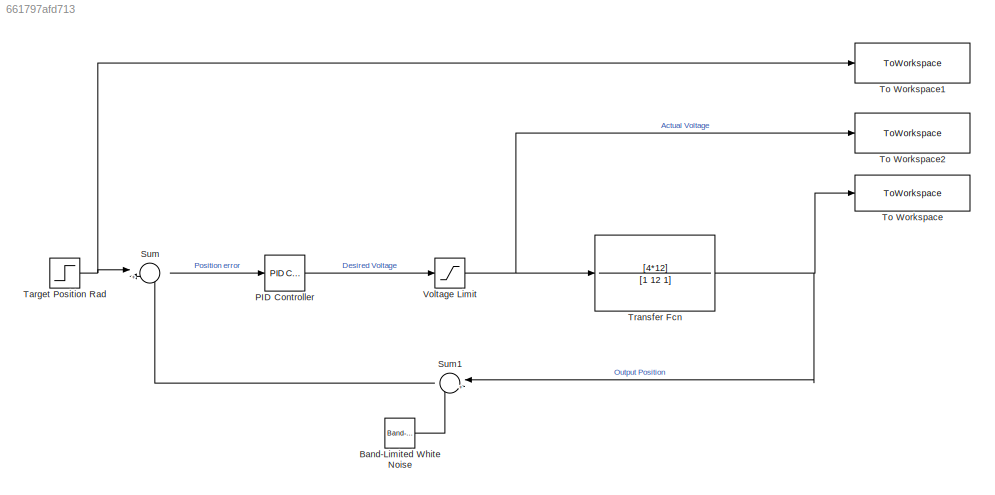
MODEL slx_661797afd713
KIND model
CONFIG AbsTol = auto
CONFIG EnableMultiTasking = off
CONFIG FixedStep = auto
CONFIG MaxStep = auto
CONFIG MinStep = auto
CONFIG RelTol = 1e-3
CONFIG SampleTimeConstraint = Unconstrained
CONFIG SolverName = VariableStepAuto
CONFIG StartTime = 0.0
CONFIG StopTime = 2
BLOCK [Reference] Band-Limited White Noise  REF=simulink/Sources/Band-Limited
White Noise
  SourceBlock = simulink/Sources/Band-Limited\nWhite Noise
  SourceType = Band-Limited White Noise.
BLOCK [Reference] PID Controller  REF=slpidlib/PID Controller
  LibrarySourceBlock = simulink/Continuous/PID Controller
  SourceBlock = slpidlib/PID Controller
  SourceType = PID 1dof
BLOCK [Sum] Sum
  Inputs = |+-
BLOCK [Sum] Sum1
  Inputs = |++
BLOCK [Step] Target Position Rad
  After = pi
  SampleTime = 0
BLOCK [ToWorkspace] To Workspace
  FixptAsFi = on
  MaxDataPoints = inf
  SampleTime = -1
  SaveFormat = Timeseries
  VariableName = OutputPosition
BLOCK [ToWorkspace] To Workspace1
  FixptAsFi = on
  MaxDataPoints = inf
  SampleTime = -1
  SaveFormat = Timeseries
  VariableName = TargetPosition
BLOCK [ToWorkspace] To Workspace2
  FixptAsFi = on
  MaxDataPoints = inf
  SampleTime = -1
  SaveFormat = Timeseries
  VariableName = voltage
BLOCK [TransferFcn] Transfer Fcn
  Denominator = [1 12 1]
  Numerator = [4*12]
BLOCK [Saturate] Voltage Limit
  LowerLimit = -7.5
  UpperLimit = 7.5
LINE Band-Limited White Noise:1 -> Sum1:2
LINE PID Controller:1 -> Voltage Limit:1
LINE Sum1:1 -> Sum:2
LINE Sum:1 -> PID Controller:1
NET Target Position Rad:1 -> Sum:1, To Workspace1:1
NET Transfer Fcn:1 -> Sum1:1, To Workspace:1
NET Voltage Limit:1 -> To Workspace2:1, Transfer Fcn:1
note: NET lines group one-source signal fan-out (src -> all destinations, sorted); 1:1 wires keep LINE
